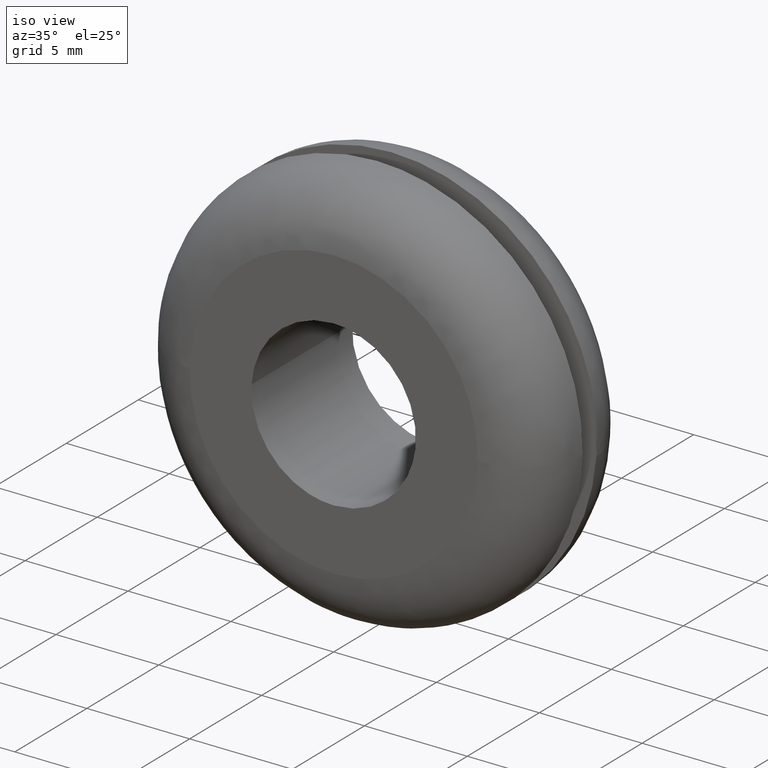
[diagram: clean part render]
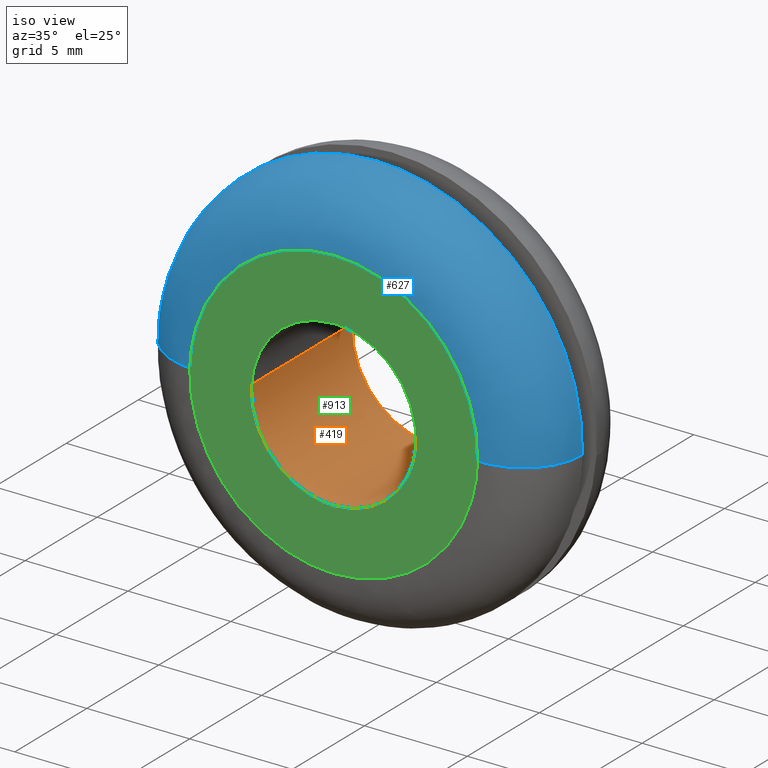
[diagram: same view with three faces highlighted in distinct colors, each labeled with its STEP entity id]
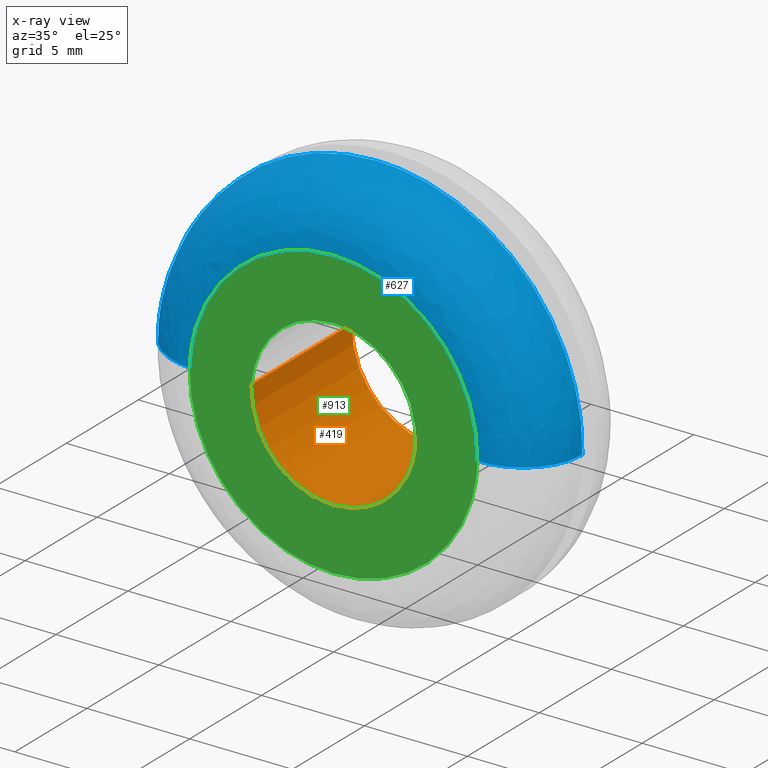
[diagram: x-ray of the same camera — body ghosted, the three highlighted faces saturated]
A machine part, iso view with three faces highlighted in distinct colors.
The next image is the same camera in x-ray (body ghosted, the three faces saturated) — at least one of them is partly hidden behind the body in this view.
Their STEP definitions:

[orange] entity #419 — the highlighted face is a freeform B-spline surface patch.
#252=CARTESIAN_POINT('',(3.972038936126205,7.0,-0.472129950170368));
#253=VERTEX_POINT('',#252);
#271=CARTESIAN_POINT('',(3.972038926118297,-8.500847E-016,-0.472130034368349));
#272=VERTEX_POINT('',#271);
#273=CARTESIAN_POINT('',(3.972038936126205,7.0,-0.472129950170368));
#274=CARTESIAN_POINT('',(3.972038926118297,-8.500847E-016,-0.472130034368349));
#275=QUASI_UNIFORM_CURVE('',1,(#273,#274),.UNSPECIFIED.,.F.,.U.);
#276=EDGE_CURVE('',#253,#272,#275,.T.);
#295=CARTESIAN_POINT('',(-3.992539270140139,-8.392267E-016,0.244192908142875));
#296=VERTEX_POINT('',#295);
#310=CARTESIAN_POINT('',(-3.992539271071073,6.999999999999996,0.244192892922069));
#311=VERTEX_POINT('',#310);
#312=CARTESIAN_POINT('',(-3.992539271071073,6.999999999999996,0.244192892922069));
#313=CARTESIAN_POINT('',(-3.992539270140139,-8.392267E-016,0.244192908142875));
#314=QUASI_UNIFORM_CURVE('',1,(#312,#313),.UNSPECIFIED.,.F.,.U.);
#315=EDGE_CURVE('',#311,#296,#314,.T.);
#333=CARTESIAN_POINT('',(-3.989174226994832,7.174999999999998,0.299210877245890));
#334=CARTESIAN_POINT('',(-3.990851894947443,7.175000000000002,0.271781248683839));
#335=CARTESIAN_POINT('',(-4.236733351826894,7.175000000000001,-3.748345035548039));
#336=CARTESIAN_POINT('',(-0.244194158139428,7.175000000000001,-3.992539193687467));
#337=CARTESIAN_POINT('',(3.526173963358004,7.175000000000000,-4.223144786930110));
#338=CARTESIAN_POINT('',(3.975376533398390,7.175000000000001,-0.444051097592546));
#339=CARTESIAN_POINT('',(3.978697018570981,7.175000000000001,-0.416116207192987));
#340=CARTESIAN_POINT('',(-3.989174226994832,-0.179375000000001,0.299210877245890));
#341=CARTESIAN_POINT('',(-3.990851894947443,-0.179375000000001,0.271781248683839));
#342=CARTESIAN_POINT('',(-4.236733351826894,-0.179375000000001,-3.748345035548039));
#343=CARTESIAN_POINT('',(-0.244194158139428,-0.179375000000001,-3.992539193687467));
#344=CARTESIAN_POINT('',(3.526173963358004,-0.179375000000001,-4.223144786930110));
#345=CARTESIAN_POINT('',(3.975376533398390,-0.179375000000001,-0.444051097592546));
#346=CARTESIAN_POINT('',(3.978697018570981,-0.179375000000001,-0.416116207192987));
#354=(BOUNDED_SURFACE()B_SPLINE_SURFACE(2,1,((#333,#340),(#334,#341),(#335,#342),(#336,#343),(#337,#344),(#338,#345),(#339,#346)),.UNSPECIFIED.,.F.,.F.,.U.)B_SPLINE_SURFACE_WITH_KNOTS((3,1,2,1,3),(2,2),(0.0,0.064947250892111,6.692364248861629,13.054684566912369,13.119641344657660),(0.0,7.354375000000004),.UNSPECIFIED.)GEOMETRIC_REPRESENTATION_ITEM()RATIONAL_B_SPLINE_SURFACE(((1.005740580190655,1.005740580190655),(1.002870290095327,1.002870290095327),(0.707106781186548,0.707106781186548),(1.0,1.0),(0.718822509939086,0.718822509939086),(0.980146855031721,0.980146855031721),(0.982787909268315,0.982787909268315)))REPRESENTATION_ITEM('')SURFACE());
#355=CARTESIAN_POINT('',(0.0,7.0,-4.0));
#356=VERTEX_POINT('',#355);
#357=CARTESIAN_POINT('',(0.0,7.0,-4.0));
#358=CARTESIAN_POINT('',(3.552704398476067,7.000000000000001,-4.000000000000000));
#359=CARTESIAN_POINT('',(3.972038936126205,7.0,-0.472129950170368));
#367=(BOUNDED_CURVE()B_SPLINE_CURVE(2,(#357,#358,#359),.UNSPECIFIED.,.F.,.U.)B_SPLINE_CURVE_WITH_KNOTS((3,3),(0.0,0.229562770862239),.UNSPECIFIED.)CURVE()GEOMETRIC_REPRESENTATION_ITEM()RATIONAL_B_SPLINE_CURVE((1.0,0.731050484489696,0.956027337000208))REPRESENTATION_ITEM(''));
#368=EDGE_CURVE('',#356,#253,#367,.T.);
#369=ORIENTED_EDGE('',*,*,#368,.F.);
#370=CARTESIAN_POINT('',(-3.992539271071073,6.999999999999996,0.244192892922069));
#371=CARTESIAN_POINT('',(-4.000000000000000,7.000000000000001,0.122210418811918));
#372=CARTESIAN_POINT('',(-4.0,7.0,-1.836910E-016));
#373=CARTESIAN_POINT('',(-4.000000000000000,6.999999999999999,-4.000000000000000));
#374=CARTESIAN_POINT('',(0.0,7.0,-4.0));
#382=(BOUNDED_CURVE()B_SPLINE_CURVE(2,(#370,#371,#372,#373,#374),.UNSPECIFIED.,.F.,.U.)B_SPLINE_CURVE_WITH_KNOTS((3,2,3),(0.739333016921257,0.750000000000000,1.0),.UNSPECIFIED.)CURVE()GEOMETRIC_REPRESENTATION_ITEM()RATIONAL_B_SPLINE_CURVE((0.976072158861354,0.987502851964153,1.0,0.707106781186548,1.0))REPRESENTATION_ITEM(''));
#383=EDGE_CURVE('',#311,#356,#382,.T.);
#384=ORIENTED_EDGE('',*,*,#383,.F.);
#385=ORIENTED_EDGE('',*,*,#315,.T.);
#386=CARTESIAN_POINT('',(0.0,-7.347638E-016,-4.0));
#387=VERTEX_POINT('',#386);
#388=CARTESIAN_POINT('',(-3.992539270140139,-8.392267E-016,0.244192908142875));
#389=CARTESIAN_POINT('',(-4.000000000000001,-7.347638E-016,0.122210426443659));
#390=CARTESIAN_POINT('',(-4.0,-7.347638E-016,-1.836910E-016));
#391=CARTESIAN_POINT('',(-4.000000000000000,-7.347638E-016,-4.000000000000000));
#392=CARTESIAN_POINT('',(0.0,-7.347638E-016,-4.0));
#400=(BOUNDED_CURVE()B_SPLINE_CURVE(2,(#388,#389,#390,#391,#392),.UNSPECIFIED.,.F.,.U.)B_SPLINE_CURVE_WITH_KNOTS((3,2,3),(0.739333016263455,0.750000000000000,1.0),.UNSPECIFIED.)CURVE()GEOMETRIC_REPRESENTATION_ITEM()RATIONAL_B_SPLINE_CURVE((0.976072157451558,0.987502851193490,1.0,0.707106781186548,1.0))REPRESENTATION_ITEM(''));
#401=EDGE_CURVE('',#296,#387,#400,.T.);
#402=ORIENTED_EDGE('',*,*,#401,.T.);
#403=CARTESIAN_POINT('',(0.0,-7.347638E-016,-4.0));
#404=CARTESIAN_POINT('',(3.552704322636881,-7.347638E-016,-4.000000000000001));
#405=CARTESIAN_POINT('',(3.972038926118297,-8.500847E-016,-0.472130034368349));
#413=(BOUNDED_CURVE()B_SPLINE_CURVE(2,(#403,#404,#405),.UNSPECIFIED.,.F.,.U.)B_SPLINE_CURVE_WITH_KNOTS((3,3),(0.0,0.229562767279762),.UNSPECIFIED.)CURVE()GEOMETRIC_REPRESENTATION_ITEM()RATIONAL_B_SPLINE_CURVE((1.0,0.731050488686828,0.956027329978387))REPRESENTATION_ITEM(''));
#414=EDGE_CURVE('',#387,#272,#413,.T.);
#415=ORIENTED_EDGE('',*,*,#414,.T.);
#416=ORIENTED_EDGE('',*,*,#276,.F.);
#417=EDGE_LOOP('',(#369,#384,#385,#402,#415,#416));
#418=FACE_OUTER_BOUND('',#417,.T.);
#419=ADVANCED_FACE('',(#418),#354,.F.);

[blue] entity #627 — the highlighted face is a freeform B-spline surface patch.
#443=CARTESIAN_POINT('',(-9.996841892832897,2.999999999971457,0.251300954437361));
#444=VERTEX_POINT('',#443);
#462=CARTESIAN_POINT('',(9.996841892832897,2.999999999971457,-0.251300954437362));
#463=VERTEX_POINT('',#462);
#477=CARTESIAN_POINT('',(6.997789325016047,-1.038440E-016,-0.175910668105941));
#478=VERTEX_POINT('',#477);
#479=CARTESIAN_POINT('',(9.996841892832897,2.999999999971456,-0.251300954437362));
#480=CARTESIAN_POINT('',(9.996841892775928,6.600574E-011,-0.251300954431939));
#481=CARTESIAN_POINT('',(6.997789325016048,-1.038440E-016,-0.175910668105941));
#489=(BOUNDED_CURVE()B_SPLINE_CURVE(2,(#479,#480,#481),.UNSPECIFIED.,.F.,.U.)B_SPLINE_CURVE_WITH_KNOTS((3,3),(-1.723441281965177,-0.263586878950601),.UNSPECIFIED.)CURVE()GEOMETRIC_REPRESENTATION_ITEM()RATIONAL_B_SPLINE_CURVE((0.883897567131759,0.626638727245067,0.888510409054381))REPRESENTATION_ITEM(''));
#490=EDGE_CURVE('',#463,#478,#489,.T.);
#507=CARTESIAN_POINT('',(-6.997789325016046,-1.038440E-016,0.175910668105943));
#508=VERTEX_POINT('',#507);
#524=CARTESIAN_POINT('',(-9.996841892832897,2.999999999971456,0.251300954437361));
#525=CARTESIAN_POINT('',(-9.996841892775928,6.600574E-011,0.251300954431940));
#526=CARTESIAN_POINT('',(-6.997789325016046,-1.038440E-016,0.175910668105943));
#534=(BOUNDED_CURVE()B_SPLINE_CURVE(2,(#524,#525,#526),.UNSPECIFIED.,.F.,.U.)B_SPLINE_CURVE_WITH_KNOTS((3,3),(-1.723441281965177,-0.263586878950601),.UNSPECIFIED.)CURVE()GEOMETRIC_REPRESENTATION_ITEM()RATIONAL_B_SPLINE_CURVE((0.883897567131759,0.626638727245067,0.888510409054381))REPRESENTATION_ITEM(''));
#535=EDGE_CURVE('',#444,#508,#534,.T.);
#540=CARTESIAN_POINT('',(9.989543121437887,3.209172553633379,-0.251117477667667));
#541=CARTESIAN_POINT('',(10.240660599105553,3.209172553633380,9.738425643770221));
#542=CARTESIAN_POINT('',(0.251117477667668,3.209172553633379,9.989543121437887));
#543=CARTESIAN_POINT('',(-9.738425643770221,3.209172553633380,10.240660599105558));
#544=CARTESIAN_POINT('',(-9.989543121437887,3.209172553633379,0.251117477667668));
#545=CARTESIAN_POINT('',(10.229985953123554,-0.232007044478159,-0.257161737818724));
#546=CARTESIAN_POINT('',(10.487147690942278,-0.232007044478159,9.972824215304829));
#547=CARTESIAN_POINT('',(0.257161737818725,-0.232007044478159,10.229985953123554));
#548=CARTESIAN_POINT('',(-9.972824215304829,-0.232007044478159,10.487147690942280));
#549=CARTESIAN_POINT('',(-10.229985953123554,-0.232007044478159,0.257161737818726));
#550=CARTESIAN_POINT('',(6.789803307728222,0.007222948350152,-0.170682308466863));
#551=CARTESIAN_POINT('',(6.960485616195085,0.007222948350151,6.619120999261360));
#552=CARTESIAN_POINT('',(0.170682308466864,0.007222948350152,6.789803307728222));
#553=CARTESIAN_POINT('',(-6.619120999261360,0.007222948350151,6.960485616195085));
#554=CARTESIAN_POINT('',(-6.789803307728222,0.007222948350152,0.170682308466864));
#562=(BOUNDED_SURFACE()B_SPLINE_SURFACE(2,2,((#540,#545,#550),(#541,#546,#551),(#542,#547,#552),(#543,#548,#553),(#544,#549,#554)),.UNSPECIFIED.,.F.,.F.,.U.)B_SPLINE_SURFACE_WITH_KNOTS((3,2,3),(3,3),(0.0,16.556445674216121,33.112891348432242),(0.0,5.467110975578633),.UNSPECIFIED.)GEOMETRIC_REPRESENTATION_ITEM()RATIONAL_B_SPLINE_SURFACE(((0.910892941386805,0.599412934105556,0.915966621324616),(0.644098575789570,0.423848950436964,0.647686209279166),(0.910892941386805,0.599412934105556,0.915966621324616),(0.644098575789570,0.423848950436964,0.647686209279166),(0.910892941386805,0.599412934105556,0.915966621324616)))REPRESENTATION_ITEM('')SURFACE());
#563=CARTESIAN_POINT('',(0.0,3.0,10.0));
#564=VERTEX_POINT('',#563);
#565=CARTESIAN_POINT('',(0.0,3.0,10.0));
#566=CARTESIAN_POINT('',(-9.751778761798668,3.0,10.000000000000002));
#567=CARTESIAN_POINT('',(-9.996841892832897,2.999999999971457,0.251300954437361));
#575=(BOUNDED_CURVE()B_SPLINE_CURVE(2,(#565,#566,#567),.UNSPECIFIED.,.F.,.U.)B_SPLINE_CURVE_WITH_KNOTS((3,3),(0.500000000000000,0.745579891769667),.UNSPECIFIED.)CURVE()GEOMETRIC_REPRESENTATION_ITEM()RATIONAL_B_SPLINE_CURVE((1.0,0.712285260094892,0.989826157681259))REPRESENTATION_ITEM(''));
#576=EDGE_CURVE('',#564,#444,#575,.T.);
#577=ORIENTED_EDGE('',*,*,#576,.T.);
#578=ORIENTED_EDGE('',*,*,#535,.T.);
#579=CARTESIAN_POINT('',(0.0,-1.332268E-015,7.0));
#580=VERTEX_POINT('',#579);
#581=CARTESIAN_POINT('',(0.0,-1.332268E-015,7.0));
#582=CARTESIAN_POINT('',(-6.826245133261146,-1.332268E-015,6.999999999999999));
#583=CARTESIAN_POINT('',(-6.997789325016046,-1.038440E-016,0.175910668105943));
#591=(BOUNDED_CURVE()B_SPLINE_CURVE(2,(#581,#582,#583),.UNSPECIFIED.,.F.,.U.)B_SPLINE_CURVE_WITH_KNOTS((3,3),(0.500000000000000,0.745579891769721),.UNSPECIFIED.)CURVE()GEOMETRIC_REPRESENTATION_ITEM()RATIONAL_B_SPLINE_CURVE((1.0,0.712285260094829,0.989826157681379))REPRESENTATION_ITEM(''));
#592=EDGE_CURVE('',#580,#508,#591,.T.);
#593=ORIENTED_EDGE('',*,*,#592,.F.);
#594=CARTESIAN_POINT('',(6.997789325016047,-1.038440E-016,-0.175910668105941));
#595=CARTESIAN_POINT('',(6.999999999999999,-1.332268E-015,-0.087969224865407));
#596=CARTESIAN_POINT('',(7.0,-1.332268E-015,-1.836910E-016));
#597=CARTESIAN_POINT('',(6.999999999999999,-1.332268E-015,6.999999999999999));
#598=CARTESIAN_POINT('',(0.0,-1.332268E-015,7.0));
#606=(BOUNDED_CURVE()B_SPLINE_CURVE(2,(#594,#595,#596,#597,#598),.UNSPECIFIED.,.F.,.U.)B_SPLINE_CURVE_WITH_KNOTS((3,2,3),(0.245579891769720,0.250000000000000,0.500000000000000),.UNSPECIFIED.)CURVE()GEOMETRIC_REPRESENTATION_ITEM()RATIONAL_B_SPLINE_CURVE((0.989826157681378,0.994821521091718,1.0,0.707106781186547,1.0))REPRESENTATION_ITEM(''));
#607=EDGE_CURVE('',#478,#580,#606,.T.);
#608=ORIENTED_EDGE('',*,*,#607,.F.);
#609=ORIENTED_EDGE('',*,*,#490,.F.);
#610=CARTESIAN_POINT('',(9.996841892832897,2.999999999971457,-0.251300954437362));
#611=CARTESIAN_POINT('',(10.0,3.000000000000000,-0.125670321237785));
#612=CARTESIAN_POINT('',(10.0,3.0,-1.836910E-016));
#613=CARTESIAN_POINT('',(10.000000000000002,3.0,10.000000000000002));
#614=CARTESIAN_POINT('',(0.0,3.0,10.0));
#622=(BOUNDED_CURVE()B_SPLINE_CURVE(2,(#610,#611,#612,#613,#614),.UNSPECIFIED.,.F.,.U.)B_SPLINE_CURVE_WITH_KNOTS((3,2,3),(0.245579891769668,0.250000000000000,0.500000000000000),.UNSPECIFIED.)CURVE()GEOMETRIC_REPRESENTATION_ITEM()RATIONAL_B_SPLINE_CURVE((0.989826157681261,0.994821521091657,1.0,0.707106781186548,1.0))REPRESENTATION_ITEM(''));
#623=EDGE_CURVE('',#463,#564,#622,.T.);
#624=ORIENTED_EDGE('',*,*,#623,.T.);
#625=EDGE_LOOP('',(#577,#578,#593,#608,#609,#624));
#626=FACE_OUTER_BOUND('',#625,.T.);
#627=ADVANCED_FACE('',(#626),#562,.T.);

[green] entity #913 — the highlighted face is a freeform B-spline surface patch.
#271=CARTESIAN_POINT('',(3.972038926118297,-8.500847E-016,-0.472130034368349));
#272=VERTEX_POINT('',#271);
#278=CARTESIAN_POINT('',(0.0,-7.347638E-016,4.0));
#279=VERTEX_POINT('',#278);
#280=CARTESIAN_POINT('',(3.972038926118297,-8.500847E-016,-0.472130034368349));
#281=CARTESIAN_POINT('',(4.0,-7.347638E-016,-0.236892989983728));
#282=CARTESIAN_POINT('',(4.0,-7.347638E-016,-1.836910E-016));
#283=CARTESIAN_POINT('',(4.000000000000000,-7.347638E-016,4.000000000000000));
#284=CARTESIAN_POINT('',(0.0,-7.347638E-016,4.0));
#292=(BOUNDED_CURVE()B_SPLINE_CURVE(2,(#280,#281,#282,#283,#284),.UNSPECIFIED.,.F.,.U.)B_SPLINE_CURVE_WITH_KNOTS((3,2,3),(0.229562767279762,0.250000000000000,0.500000000000000),.UNSPECIFIED.)CURVE()GEOMETRIC_REPRESENTATION_ITEM()RATIONAL_B_SPLINE_CURVE((0.956027329978387,0.976056292499719,1.0,0.707106781186548,1.0))REPRESENTATION_ITEM(''));
#293=EDGE_CURVE('',#272,#279,#292,.T.);
#295=CARTESIAN_POINT('',(-3.992539270140139,-8.392267E-016,0.244192908142875));
#296=VERTEX_POINT('',#295);
#297=CARTESIAN_POINT('',(0.0,-7.347638E-016,4.0));
#298=CARTESIAN_POINT('',(-3.762825447901079,-7.347638E-016,4.000000000000001));
#299=CARTESIAN_POINT('',(-3.992539270140139,-8.392267E-016,0.244192908142875));
#307=(BOUNDED_CURVE()B_SPLINE_CURVE(2,(#297,#298,#299),.UNSPECIFIED.,.F.,.U.)B_SPLINE_CURVE_WITH_KNOTS((3,3),(0.500000000000000,0.739333016263455),.UNSPECIFIED.)CURVE()GEOMETRIC_REPRESENTATION_ITEM()RATIONAL_B_SPLINE_CURVE((1.0,0.719603929993058,0.976072157451558))REPRESENTATION_ITEM(''));
#308=EDGE_CURVE('',#279,#296,#307,.T.);
#386=CARTESIAN_POINT('',(0.0,-7.347638E-016,-4.0));
#387=VERTEX_POINT('',#386);
#388=CARTESIAN_POINT('',(-3.992539270140139,-8.392267E-016,0.244192908142875));
#389=CARTESIAN_POINT('',(-4.000000000000001,-7.347638E-016,0.122210426443659));
#390=CARTESIAN_POINT('',(-4.0,-7.347638E-016,-1.836910E-016));
#391=CARTESIAN_POINT('',(-4.000000000000000,-7.347638E-016,-4.000000000000000));
#392=CARTESIAN_POINT('',(0.0,-7.347638E-016,-4.0));
#400=(BOUNDED_CURVE()B_SPLINE_CURVE(2,(#388,#389,#390,#391,#392),.UNSPECIFIED.,.F.,.U.)B_SPLINE_CURVE_WITH_KNOTS((3,2,3),(0.739333016263455,0.750000000000000,1.0),.UNSPECIFIED.)CURVE()GEOMETRIC_REPRESENTATION_ITEM()RATIONAL_B_SPLINE_CURVE((0.976072157451558,0.987502851193490,1.0,0.707106781186548,1.0))REPRESENTATION_ITEM(''));
#401=EDGE_CURVE('',#296,#387,#400,.T.);
#403=CARTESIAN_POINT('',(0.0,-7.347638E-016,-4.0));
#404=CARTESIAN_POINT('',(3.552704322636881,-7.347638E-016,-4.000000000000001));
#405=CARTESIAN_POINT('',(3.972038926118297,-8.500847E-016,-0.472130034368349));
#413=(BOUNDED_CURVE()B_SPLINE_CURVE(2,(#403,#404,#405),.UNSPECIFIED.,.F.,.U.)B_SPLINE_CURVE_WITH_KNOTS((3,3),(0.0,0.229562767279762),.UNSPECIFIED.)CURVE()GEOMETRIC_REPRESENTATION_ITEM()RATIONAL_B_SPLINE_CURVE((1.0,0.731050488686828,0.956027329978387))REPRESENTATION_ITEM(''));
#414=EDGE_CURVE('',#387,#272,#413,.T.);
#477=CARTESIAN_POINT('',(6.997789325016047,-1.038440E-016,-0.175910668105941));
#478=VERTEX_POINT('',#477);
#492=CARTESIAN_POINT('',(0.0,-1.332268E-015,-7.0));
#493=VERTEX_POINT('',#492);
#494=CARTESIAN_POINT('',(0.0,-1.332268E-015,-7.0));
#495=CARTESIAN_POINT('',(6.826245133261127,-1.332268E-015,-7.0));
#496=CARTESIAN_POINT('',(6.997789325016048,-1.038440E-016,-0.175910668105941));
#504=(BOUNDED_CURVE()B_SPLINE_CURVE(2,(#494,#495,#496),.UNSPECIFIED.,.F.,.U.)B_SPLINE_CURVE_WITH_KNOTS((3,3),(0.0,0.245579891769720),.UNSPECIFIED.)CURVE()GEOMETRIC_REPRESENTATION_ITEM()RATIONAL_B_SPLINE_CURVE((1.0,0.712285260094830,0.989826157681378))REPRESENTATION_ITEM(''));
#505=EDGE_CURVE('',#493,#478,#504,.T.);
#507=CARTESIAN_POINT('',(-6.997789325016046,-1.038440E-016,0.175910668105943));
#508=VERTEX_POINT('',#507);
#509=CARTESIAN_POINT('',(-6.997789325016046,-1.038440E-016,0.175910668105943));
#510=CARTESIAN_POINT('',(-6.999999999999999,-1.332268E-015,0.087969224865409));
#511=CARTESIAN_POINT('',(-7.0,-1.332268E-015,-1.836910E-016));
#512=CARTESIAN_POINT('',(-6.999999999999999,-1.332268E-015,-6.999999999999999));
#513=CARTESIAN_POINT('',(0.0,-1.332268E-015,-7.0));
#521=(BOUNDED_CURVE()B_SPLINE_CURVE(2,(#509,#510,#511,#512,#513),.UNSPECIFIED.,.F.,.U.)B_SPLINE_CURVE_WITH_KNOTS((3,2,3),(0.745579891769720,0.750000000000000,1.0),.UNSPECIFIED.)CURVE()GEOMETRIC_REPRESENTATION_ITEM()RATIONAL_B_SPLINE_CURVE((0.989826157681378,0.994821521091718,1.0,0.707106781186547,1.0))REPRESENTATION_ITEM(''));
#522=EDGE_CURVE('',#508,#493,#521,.T.);
#579=CARTESIAN_POINT('',(0.0,-1.332268E-015,7.0));
#580=VERTEX_POINT('',#579);
#581=CARTESIAN_POINT('',(0.0,-1.332268E-015,7.0));
#582=CARTESIAN_POINT('',(-6.826245133261146,-1.332268E-015,6.999999999999999));
#583=CARTESIAN_POINT('',(-6.997789325016046,-1.038440E-016,0.175910668105943));
#591=(BOUNDED_CURVE()B_SPLINE_CURVE(2,(#581,#582,#583),.UNSPECIFIED.,.F.,.U.)B_SPLINE_CURVE_WITH_KNOTS((3,3),(0.500000000000000,0.745579891769721),.UNSPECIFIED.)CURVE()GEOMETRIC_REPRESENTATION_ITEM()RATIONAL_B_SPLINE_CURVE((1.0,0.712285260094829,0.989826157681379))REPRESENTATION_ITEM(''));
#592=EDGE_CURVE('',#580,#508,#591,.T.);
#594=CARTESIAN_POINT('',(6.997789325016047,-1.038440E-016,-0.175910668105941));
#595=CARTESIAN_POINT('',(6.999999999999999,-1.332268E-015,-0.087969224865407));
#596=CARTESIAN_POINT('',(7.0,-1.332268E-015,-1.836910E-016));
#597=CARTESIAN_POINT('',(6.999999999999999,-1.332268E-015,6.999999999999999));
#598=CARTESIAN_POINT('',(0.0,-1.332268E-015,7.0));
#606=(BOUNDED_CURVE()B_SPLINE_CURVE(2,(#594,#595,#596,#597,#598),.UNSPECIFIED.,.F.,.U.)B_SPLINE_CURVE_WITH_KNOTS((3,2,3),(0.245579891769720,0.250000000000000,0.500000000000000),.UNSPECIFIED.)CURVE()GEOMETRIC_REPRESENTATION_ITEM()RATIONAL_B_SPLINE_CURVE((0.989826157681378,0.994821521091718,1.0,0.707106781186547,1.0))REPRESENTATION_ITEM(''));
#607=EDGE_CURVE('',#478,#580,#606,.T.);
#896=CARTESIAN_POINT('',(-7.696868582839481,-1.033516E-015,-7.699299972865284));
#897=CARTESIAN_POINT('',(-7.696868582839481,-1.033516E-015,7.699300348374545));
#898=CARTESIAN_POINT('',(7.696868833099930,-1.033516E-015,-7.699299972865284));
#899=CARTESIAN_POINT('',(7.696868833099930,-1.033516E-015,7.699300348374544));
#900=B_SPLINE_SURFACE_WITH_KNOTS('',1,1,((#896,#898),(#897,#899)),.UNSPECIFIED.,.F.,.F.,.U.,(2,2),(2,2),(0.0,15.398600321239829),(0.0,15.393737415939411),.UNSPECIFIED.);
#901=ORIENTED_EDGE('',*,*,#505,.T.);
#902=ORIENTED_EDGE('',*,*,#607,.T.);
#903=ORIENTED_EDGE('',*,*,#592,.T.);
#904=ORIENTED_EDGE('',*,*,#522,.T.);
#905=EDGE_LOOP('',(#901,#902,#903,#904));
#906=FACE_OUTER_BOUND('',#905,.T.);
#907=ORIENTED_EDGE('',*,*,#308,.F.);
#908=ORIENTED_EDGE('',*,*,#293,.F.);
#909=ORIENTED_EDGE('',*,*,#414,.F.);
#910=ORIENTED_EDGE('',*,*,#401,.F.);
#911=EDGE_LOOP('',(#907,#908,#909,#910));
#912=FACE_BOUND('',#911,.T.);
#913=ADVANCED_FACE('',(#906,#912),#900,.F.);